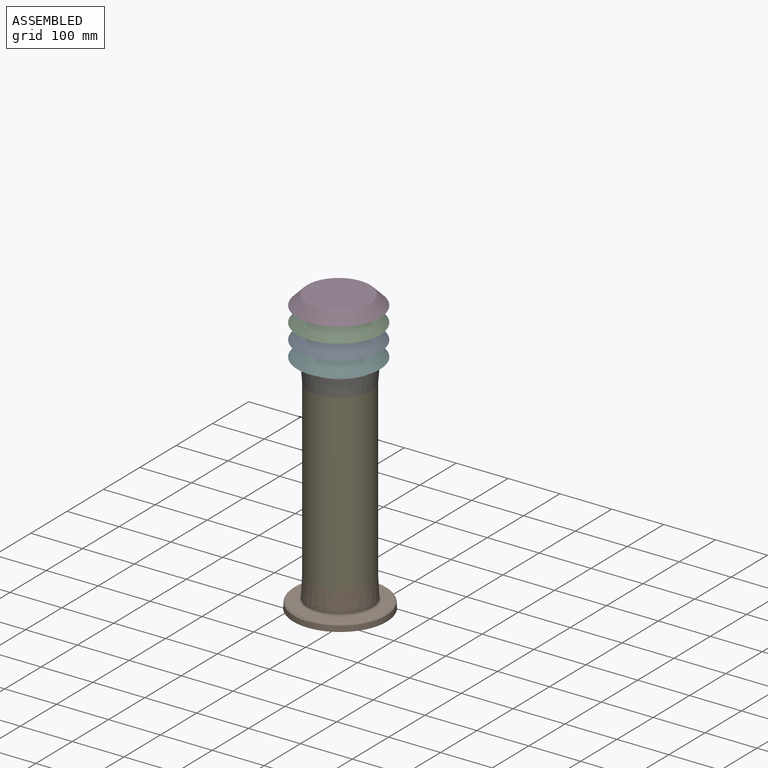
[diagram: assembled view]
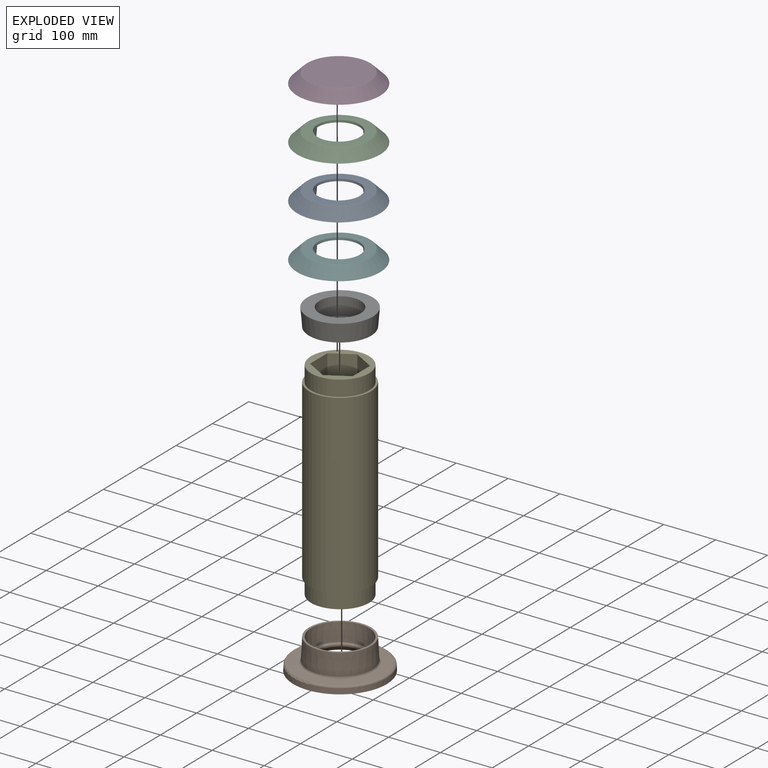
[diagram: exploded view]
GUIDED TOUR — MATED ASSEMBLY (Onshape document 784e36c44c96b5ca6e36557c, AutoMate assembly 784e36c44c96b5ca6e36557c_433cd6b05420b332130fd527_df80a0578f8339618f9793ca_default)

This assembly has 7 components, labeled P0..P6 below (a component is one placed occurrence of a part; the same part can appear more than once), held together by 5 mates. A mate is a constraint between two components; its type names the relative motion it leaves free:
  FASTENED — locks the two components together rigidly (no relative motion).
Axis/direction vectors are unit vectors and 'through' points are millimeter coordinates, both in the assembly's world frame.

MATES
  1. FASTENED "Fastened 4": P0 <-> P2, direction (0.000, 0.000, -1.000) through (29.02, 185.79, 226.51) mm
  2. FASTENED "Fastened 2": P5 <-> P0, direction (0.000, 0.000, -1.000) through (29.02, 185.79, 196.51) mm
  3. FASTENED "Fastened 7": P4 <-> P1, direction (0.000, 0.000, -1.000) through (5.22, 144.57, -207.49) mm
  4. FASTENED "Fastened 5": P5 <-> P6, direction (0.000, 0.000, -1.000) through (29.02, 185.79, 196.51) mm
  5. FASTENED "Fastened 3": P3 <-> P2, direction (0.000, 0.000, 1.000) through (4.02, 142.49, 316.51) mm

ASSEMBLY ORDER
  1. P4 — the base component [order heuristic]
  2. P6 — core [order heuristic]
  3. P1 — core [order heuristic]
  4. P5 [order verified]
  5. P0 [order verified]
  6. P2 [order verified]
  7. P3 [order verified]
Order-tag legend:
  [order verified] — this step's position reverses a verified removal order: the component was checked to insert without passing through the ones already placed.
  [order heuristic] — the first 3 components form the assembly's core: parts whose collision-free extraction could not be verified, listed in mate-graph order.

Of the 7 components, 6 carry the full construction recipe — the FeatureScript program that regenerates the part's solid from scratch; the rest are supplied as boundary geometry only.
Each toured component is shown spotlighted twice — in the assembled view, then in the exploded view, where a leader line traces a displaced component back to its assembled socket (saturated green if recipe-attached, orange if geometry-only; every other component desaturated gray) — followed by its recipe or geometry summary and the mates that hold it.
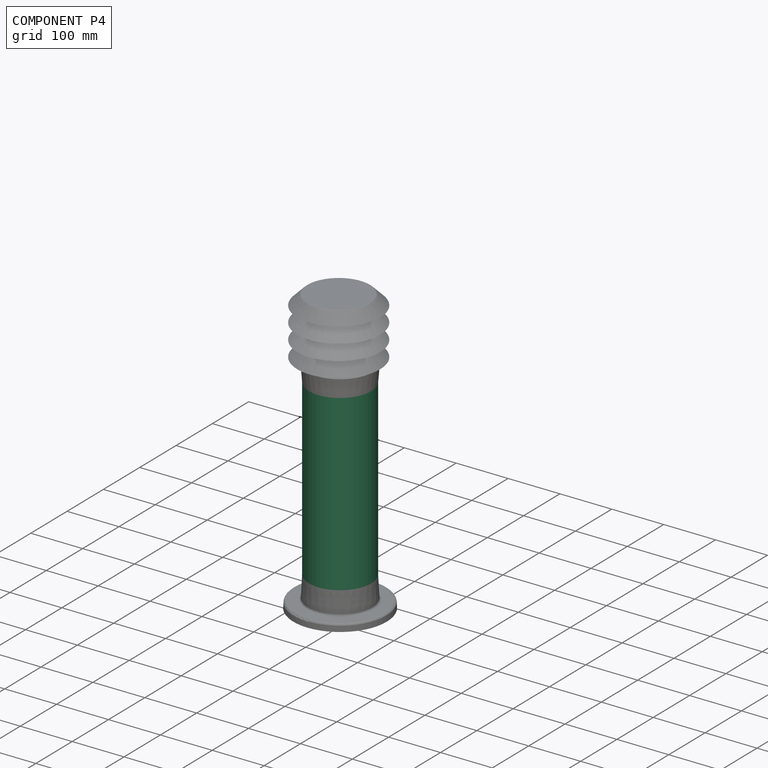
[diagram: component P4 — assembled]
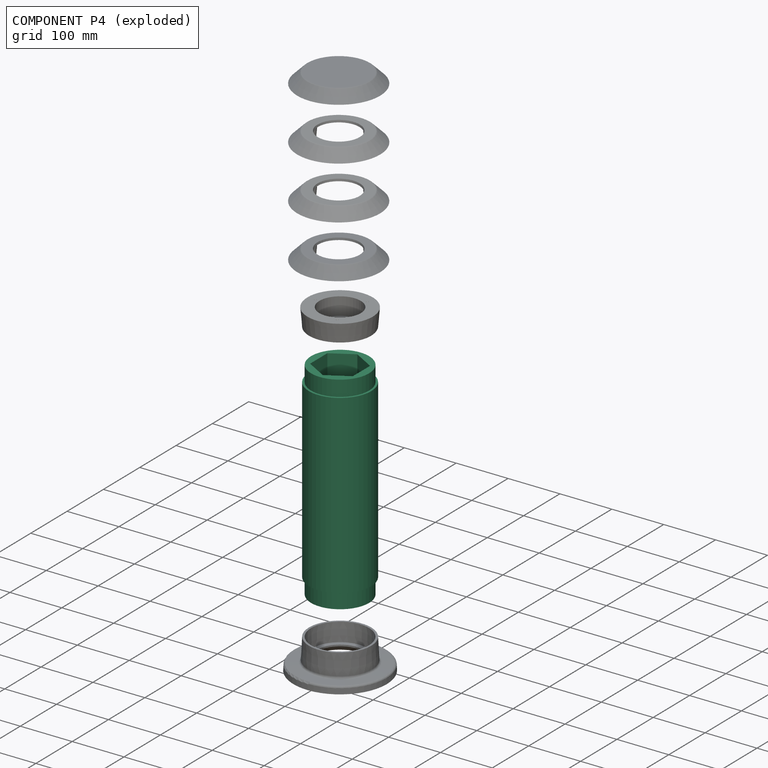
[diagram: component P4 — exploded]
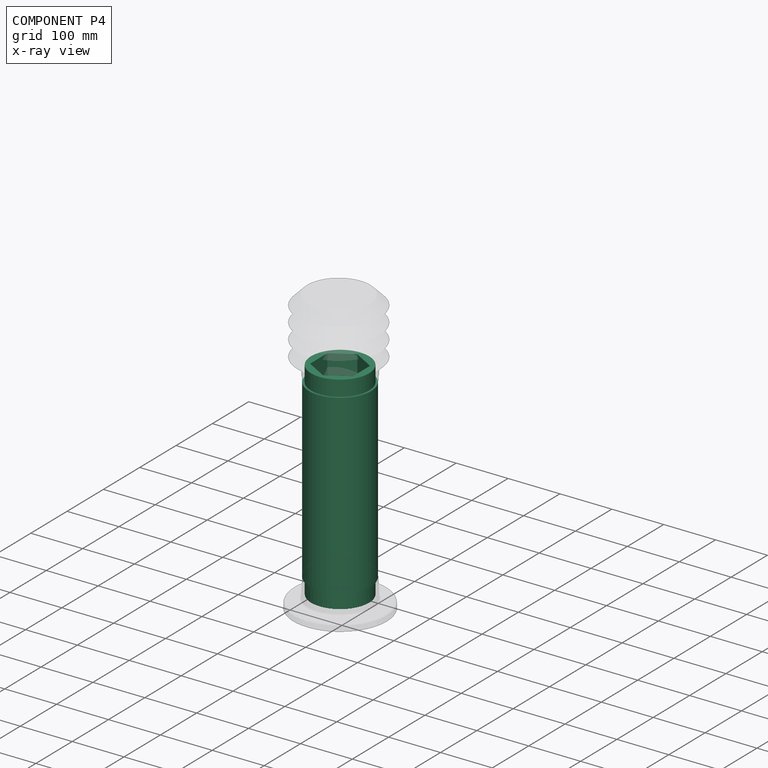
[diagram: component P4 — x-ray view]
COMPONENT P4 — recipe-attached (CADFS 00659812, mesh-verified: the recipe's output STEP matches this component's geometry to below the mesh-comparison resolution (tessellation chordal tolerance ~0.652 mm)).
Held by: FASTENED mate "Fastened 7" to P1.
Construction recipe (FeatureScript — the CAD program that rebuilds this solid; sketch coordinates are in the units given by the * unit suffixes, e.g. mm):

FeatureScript 1511;
import(path : "onshape/std/geometry.fs", version : "1511.0");
import(path : "onshape/std/common.fs", version : "1511.0");
const mm = millimeter;
const VERTEX = EntityType.VERTEX;
const EDGE = EntityType.EDGE;
const FACE = EntityType.FACE;
const BODY = EntityType.BODY;
function v(x, y){return vector(x, y);}
function OD(order){return orderDisambiguation(order);}
function OSD(set){return originalSetDisambiguation(set);}
function TD(topology){return topologyDisambiguation(topology);}
function TDD(query){return trueDependencyDisambiguation(query);}
function sQuery(a, b, c) {return sketchEntityQuery(a, b, c);}

annotation { "Feature Type Name" : "Feature", "Feature Type Description" : "" }
export const myFeature = defineFeature(function(context is Context, id is Id, definition is map)
    precondition{}
    {
        {
            var Q0;
            Q0=qCreatedBy(makeId("Top.planeOp"),FACE);
            var sketch = newSketch(context, id + "F0", { "sketchPlane" : qUnion([Q0])});
            skCircle(sketch, "E0", {"center": v(0, 0) * mm, "radius": 62.5 * mm, "construction": true});
            skCircle(sketch, "E1", {"center": v(0, 0) * mm, "radius": 47.5 * mm, "construction": true});
            skLineSegment(sketch, "E2.0", {"start": v(62.5, 36.08) * mm, "end": v(62.5, -36.08) * mm});
            skLineSegment(sketch, "E2.1", {"start": v(62.5, -36.08) * mm, "end": v(0, -72.17) * mm});
            skLineSegment(sketch, "E2.2", {"start": v(0, -72.17) * mm, "end": v(-62.5, -36.08) * mm});
            skLineSegment(sketch, "E2.3", {"start": v(-62.5, -36.08) * mm, "end": v(-62.5, 36.08) * mm});
            skLineSegment(sketch, "E2.4", {"start": v(-62.5, 36.08) * mm, "end": v(0, 72.17) * mm});
            skLineSegment(sketch, "E2.5", {"start": v(0, 72.17) * mm, "end": v(62.5, 36.08) * mm});
            skPoint(sketch, "E2.0.midPoint", {"position": v(62.5, 0) * mm});
            skLineSegment(sketch, "E3", {"start": v(0, 0) * mm, "end": v(62.5, -36.08) * mm, "construction": true});
            skLineSegment(sketch, "E4", {"start": v(0, 0) * mm, "end": v(62.5, 36.08) * mm, "construction": true});
            skLineSegment(sketch, "E5", {"start": v(41.14, -23.75) * mm, "end": v(41.14, 23.75) * mm});
            skLineSegment(sketch, "E6", {"start": v(41.14, 23.75) * mm, "end": v(0, 47.5) * mm});
            skLineSegment(sketch, "E7", {"start": v(0, 0) * mm, "end": v(-62.5, 36.08) * mm, "construction": true});
            skLineSegment(sketch, "E8", {"start": v(0, 0) * mm, "end": v(-62.5, -36.08) * mm, "construction": true});
            skLineSegment(sketch, "E9", {"start": v(0, 0) * mm, "end": v(0, -72.17) * mm, "construction": true});
            skLineSegment(sketch, "E10", {"start": v(0, 0) * mm, "end": v(0, 72.17) * mm, "construction": true});
            skLineSegment(sketch, "E11", {"start": v(0, 47.5) * mm, "end": v(-41.14, 23.75) * mm});
            skLineSegment(sketch, "E12", {"start": v(-41.14, 23.75) * mm, "end": v(-41.14, -23.75) * mm});
            skLineSegment(sketch, "E13", {"start": v(-41.14, -23.75) * mm, "end": v(0, -47.5) * mm});
            skLineSegment(sketch, "E14", {"start": v(0, -47.5) * mm, "end": v(41.14, -23.75) * mm});
            skSolve(sketch);
        }
        {
            var Q0;
            Q0 = qSketchRegion(id + "F0", true);
            extrude(context, id + "F1", {"entities" : qUnion([Q0]), "depth" : 400 * mm, "offsetDistance" : 25 * mm});
        }
        {
            var Q0;
            Q0=qCreatedBy(makeId("Top.planeOp"),FACE);
            var sketch = newSketch(context, id + "F2", { "sketchPlane" : qUnion([Q0])});
            skCircle(sketch, "E15", {"center": v(0, 0) * mm, "radius": 60 * mm});
            skCircle(sketch, "E16", {"center": v(0, 0) * mm, "radius": 91.56 * mm});
            skSolve(sketch);
        }
        {
            var Q0;
            Q0 = qSketchRegion(id + "F2", true);
            extrude(context, id + "F3", {"entities" : qUnion([Q0]), "operationType" : NewBodyOperationType.REMOVE, "endBound" : BoundingType.THROUGH_ALL, "depth" : 25 * mm, "offsetDistance" : 25 * mm});
        }
        {
            var Q0;
            Q0=qCreatedBy(makeId("Top.planeOp"),FACE);
            var sketch = newSketch(context, id + "F4", { "sketchPlane" : qUnion([Q0])});
            skCircle(sketch, "E17", {"center": v(0, 0) * mm, "radius": 159.33 * mm});
            skCircle(sketch, "E18", {"center": v(0, 0) * mm, "radius": 56 * mm});
            skSolve(sketch);
        }
        {
            var Q0;
            Q0 = qSketchRegion(id + "F4", true);
            extrude(context, id + "F5", {"entities" : qUnion([Q0]), "operationType" : NewBodyOperationType.REMOVE, "depth" : 30 * mm, "offsetDistance" : 25 * mm});
        }
        {
            var Q0;
            Q0=makeQuery(id+"F1.opExtrude","CAP_FACE",FACE,{"disambiguationData":[OSD([sQuery(id+"F0.wireOp",EDGE,"E2.0"),sQuery(id+"F0.wireOp",EDGE,"E2.1"),sQuery(id+"F0.wireOp",EDGE,"E2.2"),sQuery(id+"F0.wireOp",EDGE,"E2.3"),sQuery(id+"F0.wireOp",EDGE,"E2.4"),sQuery(id+"F0.wireOp",EDGE,"E2.5"),sQuery(id+"F0.wireOp",EDGE,"E5"),sQuery(id+"F0.wireOp",EDGE,"E6"),sQuery(id+"F0.wireOp",EDGE,"E11"),sQuery(id+"F0.wireOp",EDGE,"E12"),sQuery(id+"F0.wireOp",EDGE,"E13"),sQuery(id+"F0.wireOp",EDGE,"E14")])],"isStart":false});
            var sketch = newSketch(context, id + "F6", { "sketchPlane" : qUnion([Q0])});
            skCircle(sketch, "E19.0", {"center": v(0, 0) * mm, "radius": 60 * mm, "construction": true});
            skCircle(sketch, "E20", {"center": v(0, 0) * mm, "radius": 56 * mm});
            skCircle(sketch, "E21", {"center": v(0, 0) * mm, "radius": 72.94 * mm});
            skSolve(sketch);
        }
        {
            var Q0;
            Q0 = qSketchRegion(id + "F6", true);
            extrude(context, id + "F7", {"entities" : qUnion([Q0]), "operationType" : NewBodyOperationType.REMOVE, "oppositeDirection" : true, "depth" : 30 * mm, "offsetDistance" : 25 * mm});
        }
    });
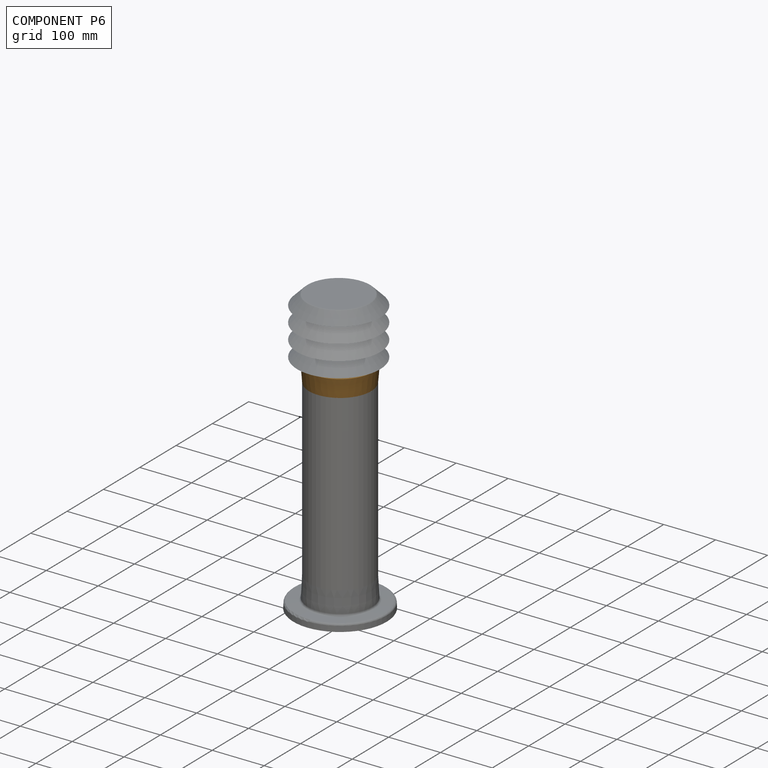
[diagram: component P6 — assembled]
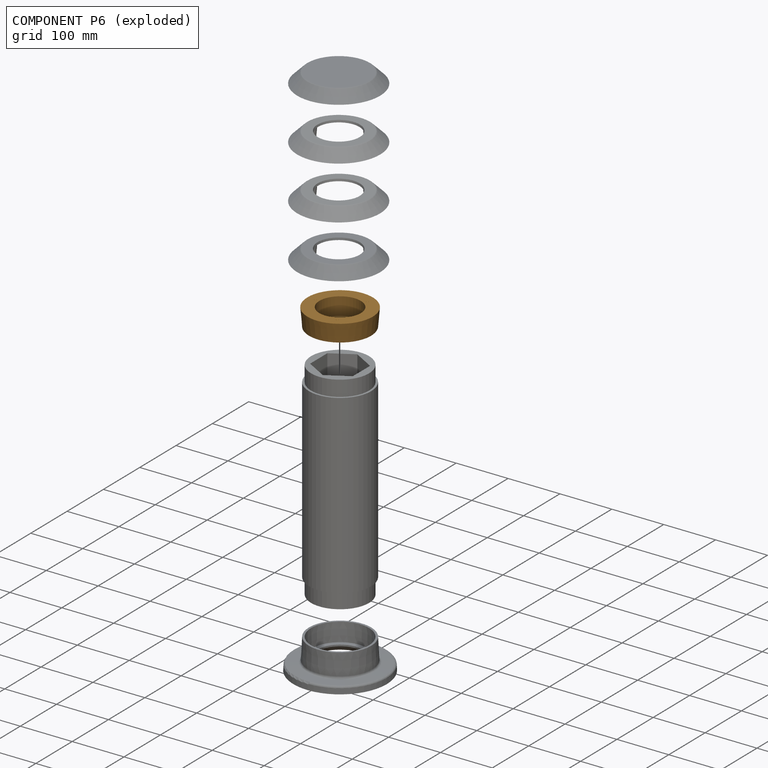
[diagram: component P6 — exploded]
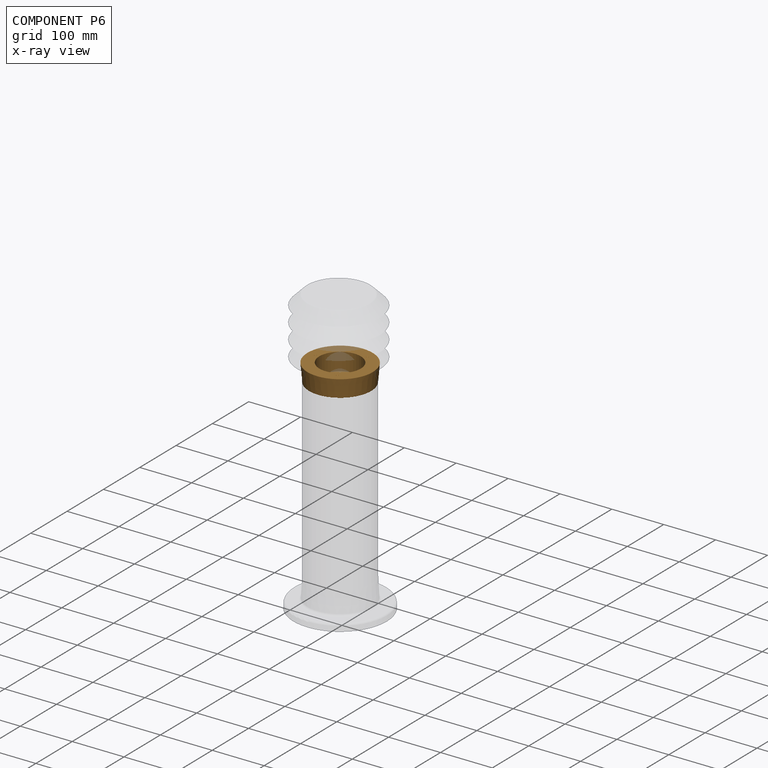
[diagram: component P6 — x-ray view]
COMPONENT P6 — geometry summary (no construction recipe available for this part):
  bounding box: 125.9 x 125.9 x 38.0 mm
  B-rep topology: 1 solid, 14 faces, 59 edges
  volume: 152552 mm^3 (25% of its bounding box)
  symmetry: 3-fold rotationally symmetric about the z axis; mirror-symmetric across its y mid-plane
Held by: FASTENED mate "Fastened 5" to P5.
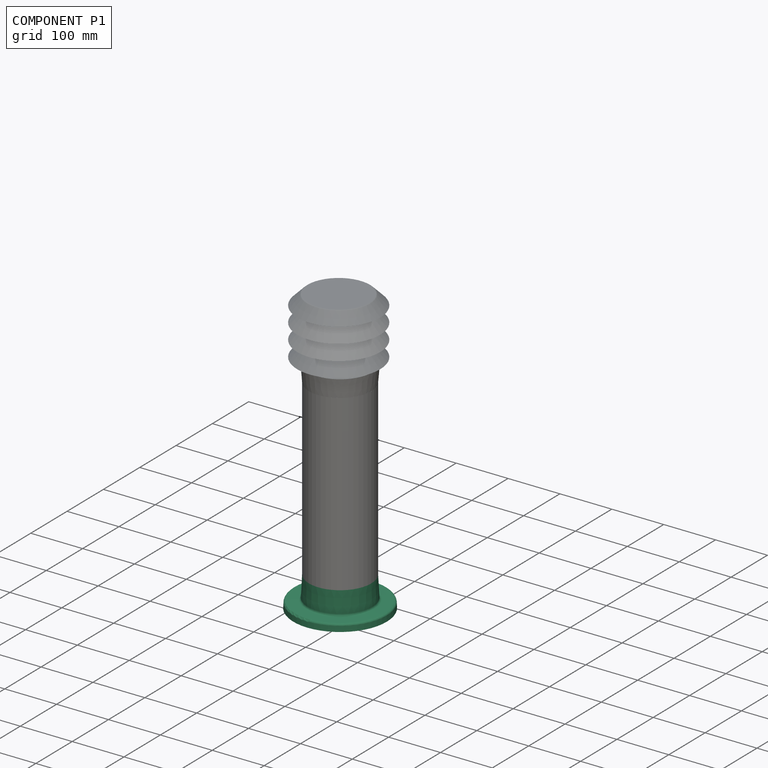
[diagram: component P1 — assembled]
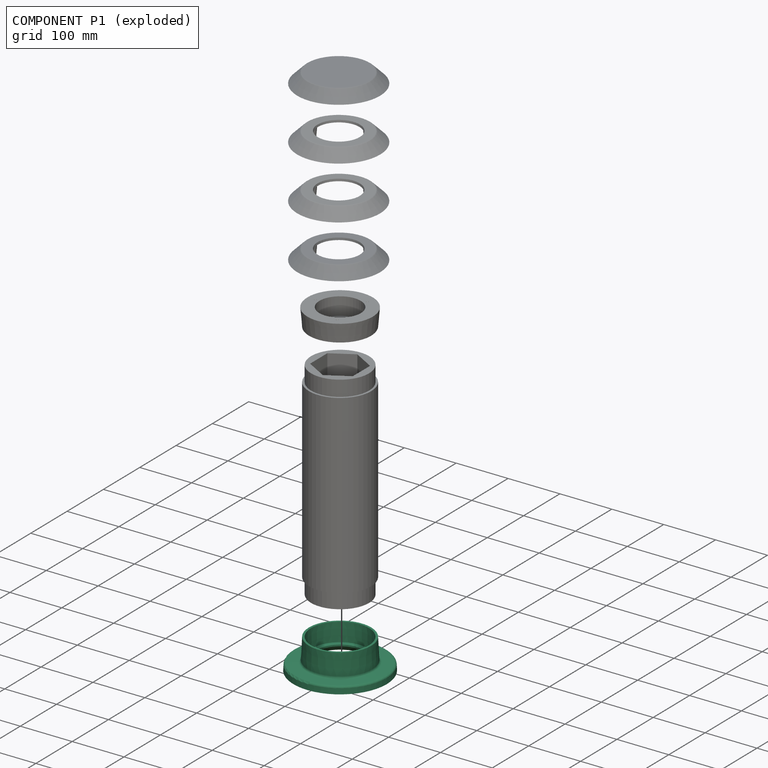
[diagram: component P1 — exploded]
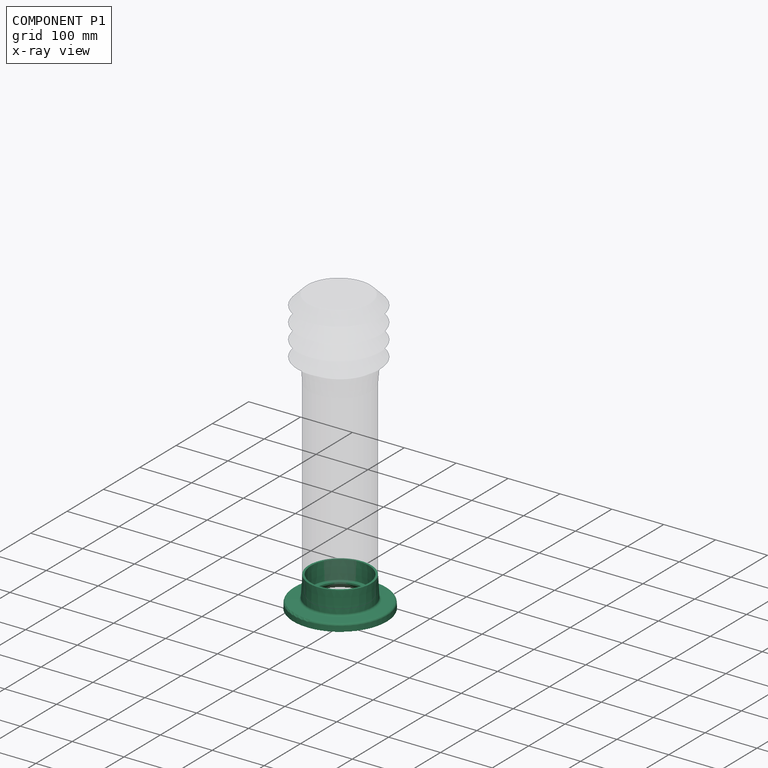
[diagram: component P1 — x-ray view]
COMPONENT P1 — recipe-attached (CADFS 00659814, mesh-verified: the recipe's output STEP matches this component's geometry to below the mesh-comparison resolution (tessellation chordal tolerance ~0.392 mm)).
Held by: FASTENED mate "Fastened 7" to P4.
Construction recipe (FeatureScript — the CAD program that rebuilds this solid; sketch coordinates are in the units given by the * unit suffixes, e.g. mm):

FeatureScript 1511;
import(path : "onshape/std/geometry.fs", version : "1511.0");
import(path : "onshape/std/common.fs", version : "1511.0");
const mm = millimeter;
const VERTEX = EntityType.VERTEX;
const EDGE = EntityType.EDGE;
const FACE = EntityType.FACE;
const BODY = EntityType.BODY;
function v(x, y){return vector(x, y);}
function OD(order){return orderDisambiguation(order);}
function OSD(set){return originalSetDisambiguation(set);}
function TD(topology){return topologyDisambiguation(topology);}
function TDD(query){return trueDependencyDisambiguation(query);}
function sQuery(a, b, c) {return sketchEntityQuery(a, b, c);}

annotation { "Feature Type Name" : "Feature", "Feature Type Description" : "" }
export const myFeature = defineFeature(function(context is Context, id is Id, definition is map)
    precondition{}
    {
        {
            var Q0;
            Q0=qCreatedBy(makeId("Front.planeOp"),FACE);
            var sketch = newSketch(context, id + "F0", { "sketchPlane" : qUnion([Q0])});
            skLineSegment(sketch, "E0", {"start": v(45, 0) * mm, "end": v(54.17, 0) * mm});
            skLineSegment(sketch, "E1", {"start": v(56, 35) * mm, "end": v(60, 35) * mm});
            skLineSegment(sketch, "E2", {"start": v(60, 35) * mm, "end": v(62.1, -5.23) * mm});
            skLineSegment(sketch, "E3", {"start": v(65.9, -9.02) * mm, "end": v(85.7, -10.06) * mm});
            skLineSegment(sketch, "E4", {"start": v(0, -4) * mm, "end": v(0, 0) * mm, "construction": true});
            skLineSegment(sketch, "E5", {"start": v(90, -23.75) * mm, "end": v(86, -23.75) * mm});
            skPoint(sketch, "E6.visualSharp", {"position": v(56, -21.06) * mm});
            skArc(sketch, "E7.filletArc", {"start": v(62.1, -5.23) * mm, "mid": v(63.27, -7.85) * mm, "end": v(65.9, -9.02) * mm});
            skPoint(sketch, "E8.visualSharp", {"position": v(95.88, -10.6) * mm});
            skLineSegment(sketch, "E9", {"start": v(45, 0) * mm, "end": v(45, -3) * mm});
            skLineSegment(sketch, "E10", {"start": v(83.57, -13.66) * mm, "end": v(55.66, -13.66) * mm});
            skPoint(sketch, "E11.visualSharp", {"position": v(96, -13.66) * mm});
            skLineSegment(sketch, "E11.filletArc", {"start": v(96, -13.66) * mm, "end": v(96, -13.66) * mm});
            skLineSegment(sketch, "E12", {"start": v(55.66, -13.66) * mm, "end": v(45, -3) * mm});
            skLineSegment(sketch, "E13", {"start": v(56, 35) * mm, "end": v(54.17, 0) * mm});
            skPoint(sketch, "E14.orphan", {"position": v(56, 0) * mm});
            skLineSegment(sketch, "E15", {"start": v(86, -23.75) * mm, "end": v(85.57, -15.55) * mm});
            skArc(sketch, "E16.filletArc", {"start": v(85.57, -15.55) * mm, "mid": v(84.95, -14.2) * mm, "end": v(83.57, -13.66) * mm});
            skLineSegment(sketch, "E17", {"start": v(90, -23.75) * mm, "end": v(89.48, -13.84) * mm});
            skArc(sketch, "E18.filletArc", {"start": v(89.48, -13.84) * mm, "mid": v(88.31, -11.22) * mm, "end": v(85.7, -10.06) * mm});
            skSolve(sketch);
        }
        {
            var Q0;
            Q0 = qSketchRegion(id + "F0", true);
            var Q1;
            Q1=sQuery(id+"F0.wireOp",EDGE,"E4");
            revolve(context, id + "F1", {"entities" : qUnion([Q0]), "axis" : qUnion([Q1]), "revolveType" : RevolveType.FULL});
        }
    });
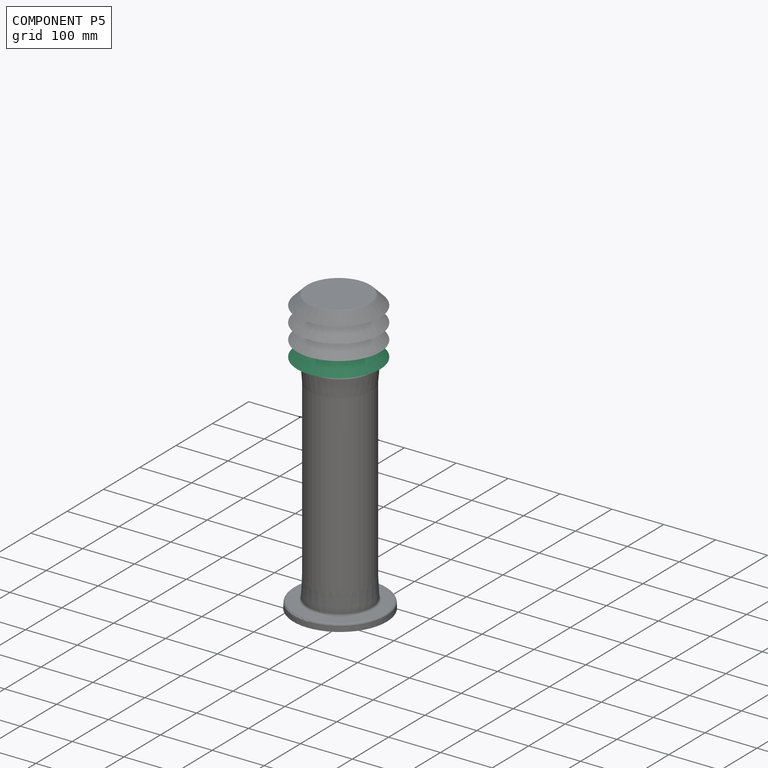
[diagram: component P5 — assembled]
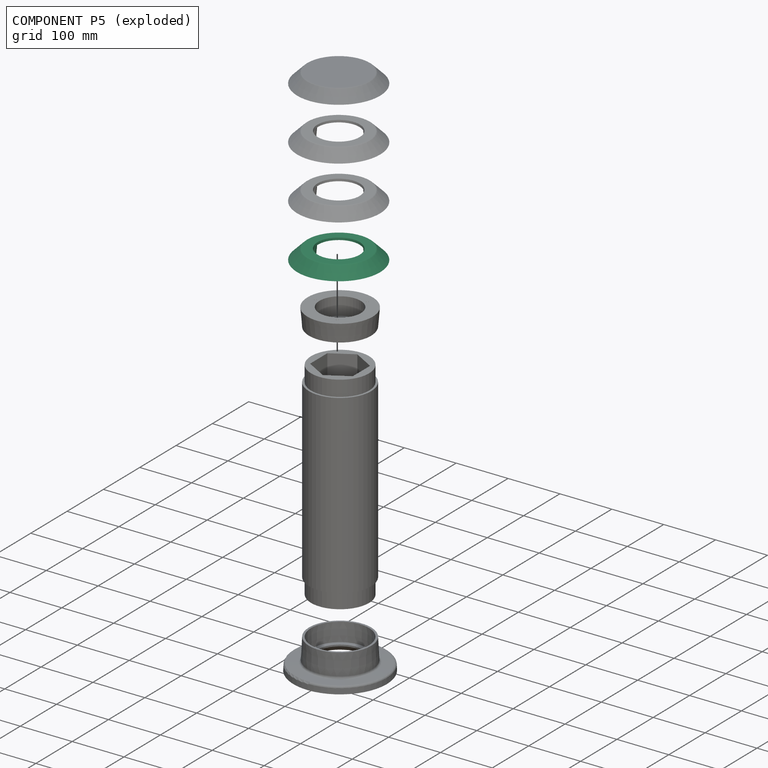
[diagram: component P5 — exploded]
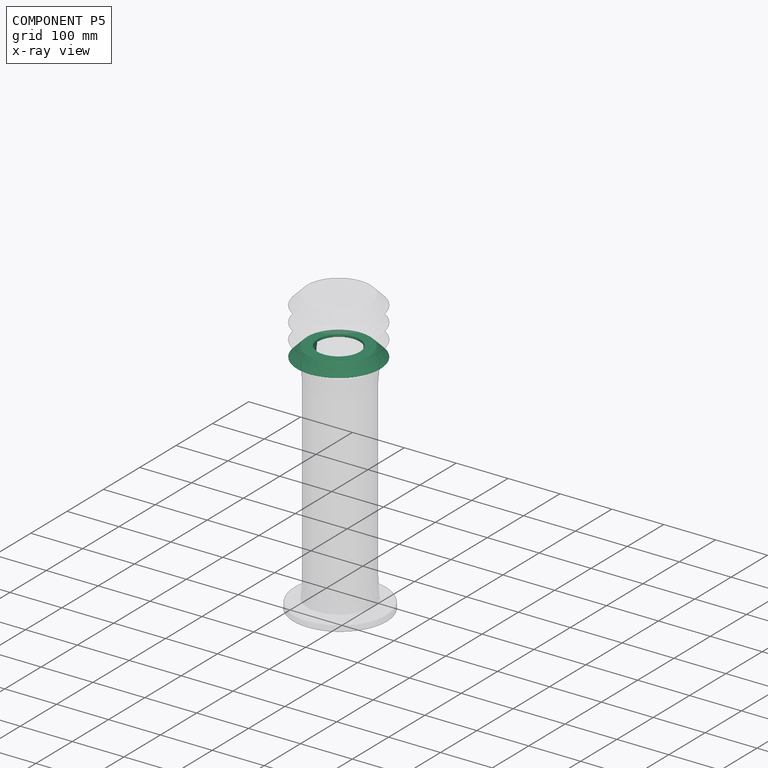
[diagram: component P5 — x-ray view]
COMPONENT P5 — same part as P0 (CADFS 00659811); its construction recipe is shown at P0.
Held by: FASTENED mate "Fastened 2" to P0; FASTENED mate "Fastened 5" to P6.
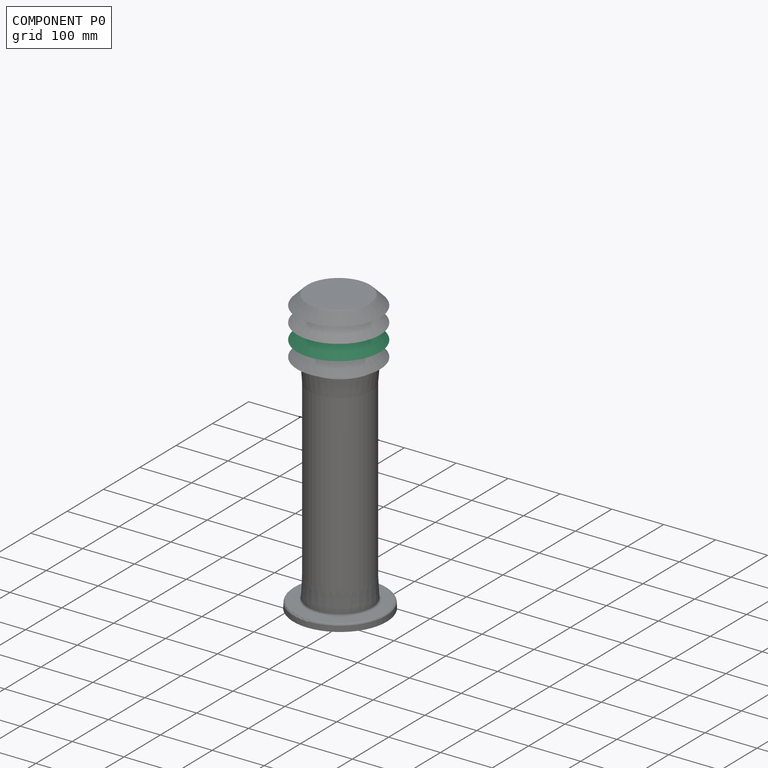
[diagram: component P0 — assembled]
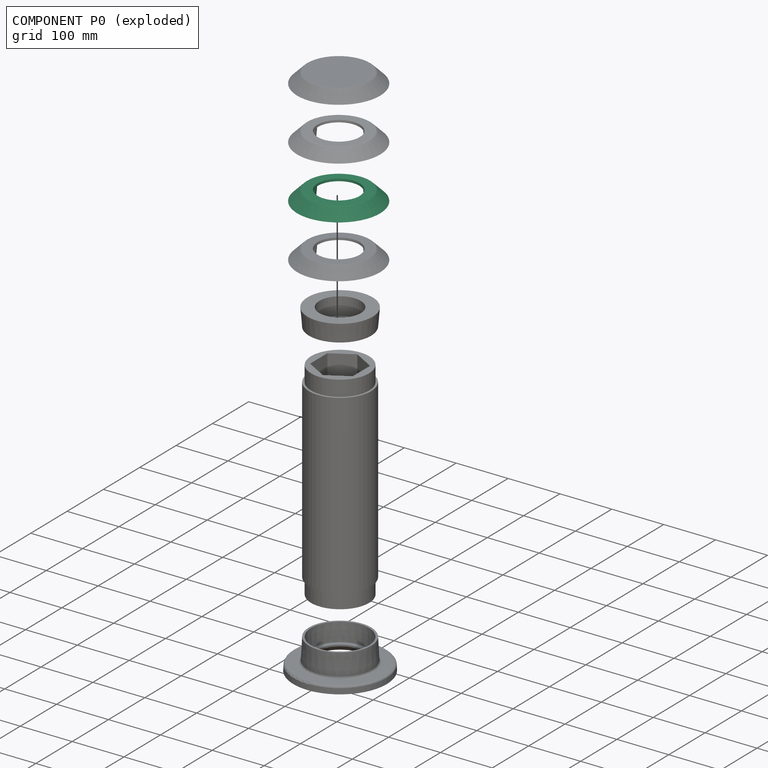
[diagram: component P0 — exploded]
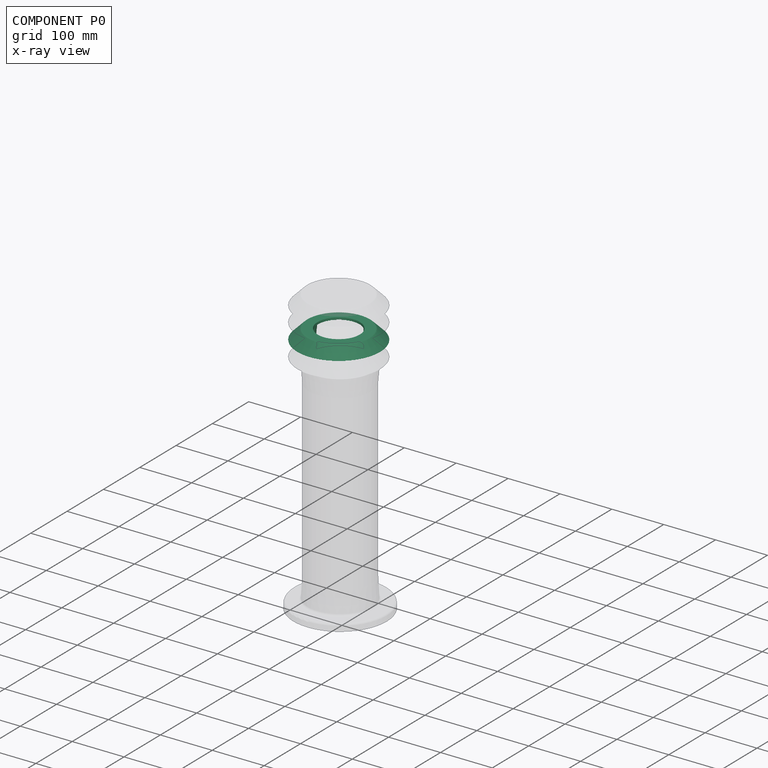
[diagram: component P0 — x-ray view]
COMPONENT P0 — recipe-attached (CADFS 00659811, mesh-verified: the recipe's output STEP matches this component's geometry to below the mesh-comparison resolution (tessellation chordal tolerance ~0.342 mm)).
Held by: FASTENED mate "Fastened 4" to P2; FASTENED mate "Fastened 2" to P5.
Construction recipe (FeatureScript — the CAD program that rebuilds this solid; sketch coordinates are in the units given by the * unit suffixes, e.g. mm):

FeatureScript 1511;
import(path : "onshape/std/geometry.fs", version : "1511.0");
import(path : "onshape/std/common.fs", version : "1511.0");
const mm = millimeter;
const VERTEX = EntityType.VERTEX;
const EDGE = EntityType.EDGE;
const FACE = EntityType.FACE;
const BODY = EntityType.BODY;
function v(x, y){return vector(x, y);}
function OD(order){return orderDisambiguation(order);}
function OSD(set){return originalSetDisambiguation(set);}
function TD(topology){return topologyDisambiguation(topology);}
function TDD(query){return trueDependencyDisambiguation(query);}
function sQuery(a, b, c) {return sketchEntityQuery(a, b, c);}

annotation { "Feature Type Name" : "Feature", "Feature Type Description" : "" }
export const myFeature = defineFeature(function(context is Context, id is Id, definition is map)
    precondition{}
    {
        {
            var Q0;
            Q0=qCreatedBy(makeId("Front.planeOp"),FACE);
            var sketch = newSketch(context, id + "F0", { "sketchPlane" : qUnion([Q0])});
            skLineSegment(sketch, "E0", {"start": v(0, 0) * mm, "end": v(60, 0) * mm});
            skLineSegment(sketch, "E1", {"start": v(60, 0) * mm, "end": v(80, 20) * mm});
            skLineSegment(sketch, "E2", {"start": v(80, 20) * mm, "end": v(74.34, 20) * mm});
            skLineSegment(sketch, "E3", {"start": v(74.34, 20) * mm, "end": v(58.34, 4) * mm});
            skLineSegment(sketch, "E4", {"start": v(58.34, 4) * mm, "end": v(0, 4) * mm});
            skLineSegment(sketch, "E5", {"start": v(0, 4) * mm, "end": v(0, 0) * mm});
            skSolve(sketch);
        }
        {
            var Q0;
            Q0=qSketchRegion(id+"F0",true);
            var Q1;
            Q1=sQuery(id+"F0.wireOp",EDGE,"E5");
            revolve(context, id + "F1", {"entities" : qUnion([Q0]), "axis" : qUnion([Q1]), "revolveType" : RevolveType.FULL});
        }
        {
            var Q0;
            Q0=qCreatedBy(makeId("Top.planeOp"),FACE);
            var sketch = newSketch(context, id + "F2", { "sketchPlane" : qUnion([Q0])});
            skCircle(sketch, "E6", {"center": v(25, 43.3) * mm, "radius": 7.5 * mm});
            skCircle(sketch, "E7", {"center": v(-50, 0) * mm, "radius": 7.5 * mm});
            skLineSegment(sketch, "E8", {"start": v(0, 0) * mm, "end": v(31.77, 55.03) * mm, "construction": true});
            skLineSegment(sketch, "E9", {"start": v(0, 0) * mm, "end": v(26.35, -45.65) * mm, "construction": true});
            skCircle(sketch, "E10", {"center": v(25, -43.3) * mm, "radius": 7.5 * mm});
            skSolve(sketch);
        }
        {
            var Q0;
            Q0=qSketchRegion(id+"F2",true);
            var Q1;
            Q1=makeQuery(id+"F1.opRevolve","SWEPT_FACE",FACE,{"disambiguationData":[OSD([sQuery(id+"F0.wireOp",EDGE,"E2")])]});
            extrude(context, id + "F3", {"entities" : qUnion([Q0]), "operationType" : NewBodyOperationType.ADD, "depth" : 30 * mm, "endBoundEntityFace" : qUnion([Q1]), "offsetDistance" : 10 * mm, "hasDraft" : true, "draftAngle" : 5 * degree, "draftPullDirection" : true});
        }
        {
            var Q0;
            Q0=makeQuery(id+"F1.opRevolve","SWEPT_FACE",FACE,{"disambiguationData":[OSD([sQuery(id+"F0.wireOp",EDGE,"E4")])]});
            fillet(context, id + "F4", {"entities" : qUnion([Q0]), "radius" : 3 * mm, "tangentPropagation" : true, "allowEdgeOverflow" : false});
        }
        {
            var Q0;
            Q0=makeQuery(id+"F1.opRevolve","SWEPT_FACE",FACE,{"disambiguationData":[OSD([sQuery(id+"F0.wireOp",EDGE,"E0")])]});
            fillet(context, id + "F5", {"entities" : qUnion([Q0]), "radius" : 3 * mm, "tangentPropagation" : true, "allowEdgeOverflow" : false});
        }
        {
            var Q0;
            Q0=makeQuery(id+"F3.opExtrude","CAP_FACE",FACE,{"disambiguationData":[OSD([sQuery(id+"F2.wireOp",EDGE,"E7")])],"isStart":false});
            var sketch = newSketch(context, id + "F6", { "sketchPlane" : qUnion([Q0])});
            skCircle(sketch, "E11.0.0", {"center": v(-50, 0) * mm, "radius": 4.88 * mm, "construction": true});
            skCircle(sketch, "E12.0", {"center": v(25, 43.3) * mm, "radius": 4.88 * mm, "construction": true});
            skCircle(sketch, "E13.0", {"center": v(25, -43.3) * mm, "radius": 4.88 * mm, "construction": true});
            skCircle(sketch, "E14", {"center": v(25, 43.3) * mm, "radius": 2.5 * mm});
            skCircle(sketch, "E15", {"center": v(25, -43.3) * mm, "radius": 2.5 * mm});
            skCircle(sketch, "E16", {"center": v(-50, 0) * mm, "radius": 2.5 * mm});
            skSolve(sketch);
        }
        {
            var Q0;
            Q0=qSketchRegion(id+"F6",true);
            extrude(context, id + "F7", {"entities" : qUnion([Q0]), "operationType" : NewBodyOperationType.REMOVE, "oppositeDirection" : true, "depth" : 2.5 * mm, "offsetDistance" : 25 * mm, "hasDraft" : true, "draftAngle" : 45 * degree, "draftPullDirection" : true});
        }
        {
            var Q0;
            Q0=makeQuery(id+"F1.opRevolve","SWEPT_FACE",FACE,{"disambiguationData":[OSD([sQuery(id+"F0.wireOp",EDGE,"E4")])]});
            var sketch = newSketch(context, id + "F8", { "sketchPlane" : qUnion([Q0])});
            skCircle(sketch, "E17", {"center": v(0, 0) * mm, "radius": 40 * mm});
            skSolve(sketch);
        }
        {
            var Q0;
            Q0 = qSketchRegion(id + "F8", true);
            extrude(context, id + "F9", {"entities" : qUnion([Q0]), "operationType" : NewBodyOperationType.REMOVE, "endBound" : BoundingType.THROUGH_ALL, "oppositeDirection" : true, "depth" : 25 * mm, "offsetDistance" : 25 * mm, "hasDraft" : true, "draftAngle" : 10 * degree});
        }
    });
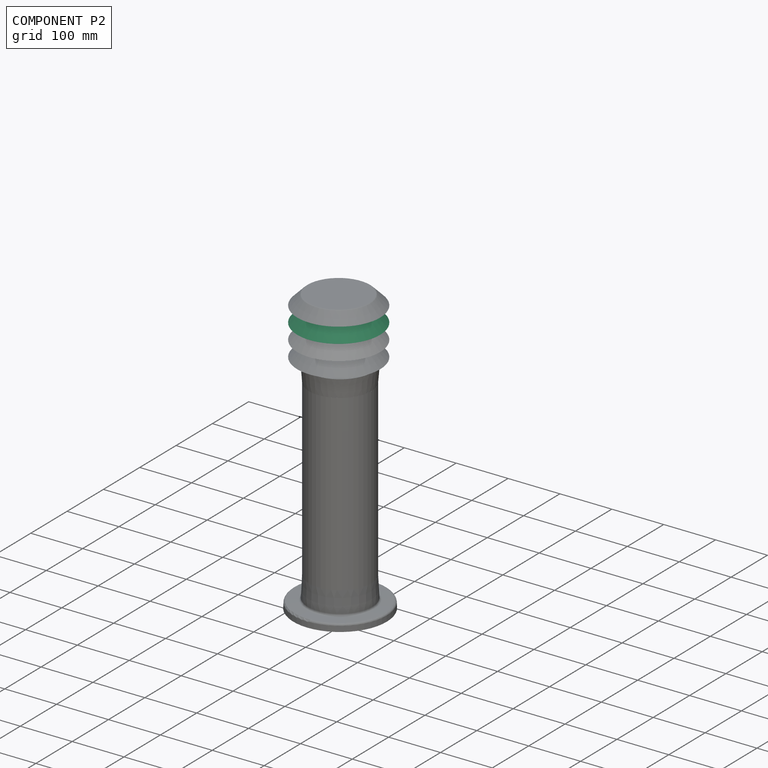
[diagram: component P2 — assembled]
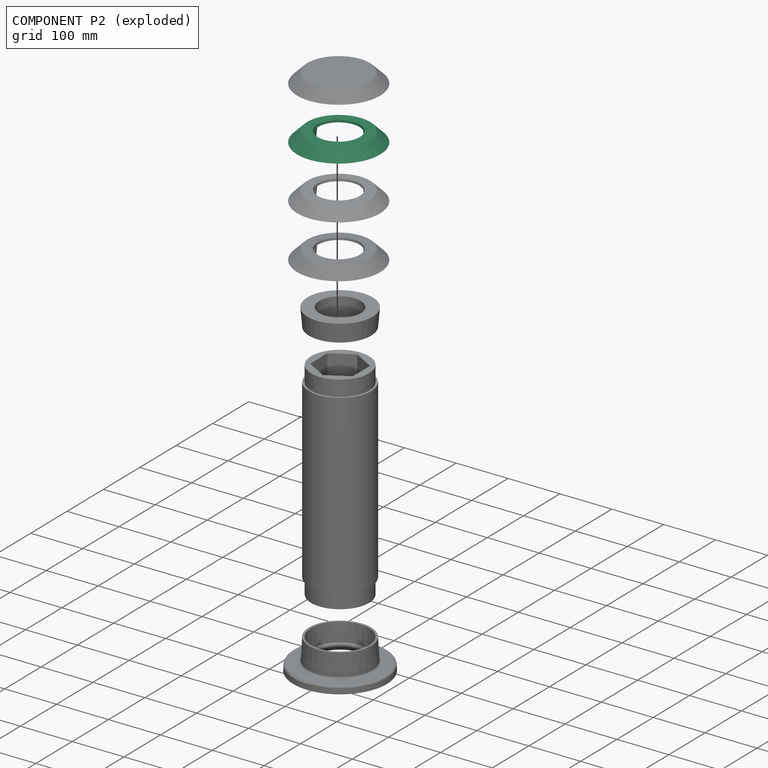
[diagram: component P2 — exploded]
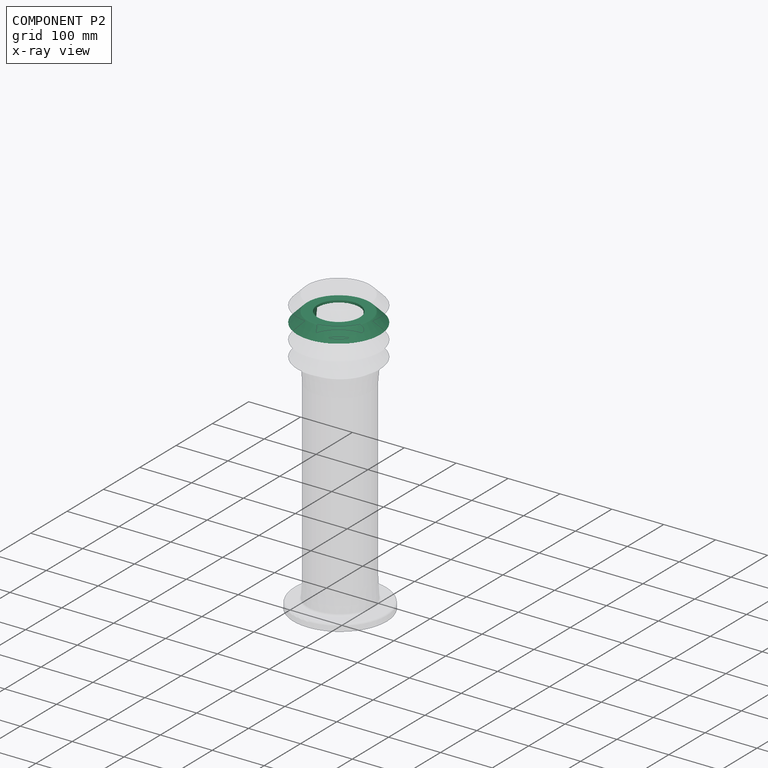
[diagram: component P2 — x-ray view]
COMPONENT P2 — same part as P0 (CADFS 00659811); its construction recipe is shown at P0.
Held by: FASTENED mate "Fastened 4" to P0; FASTENED mate "Fastened 3" to P3.
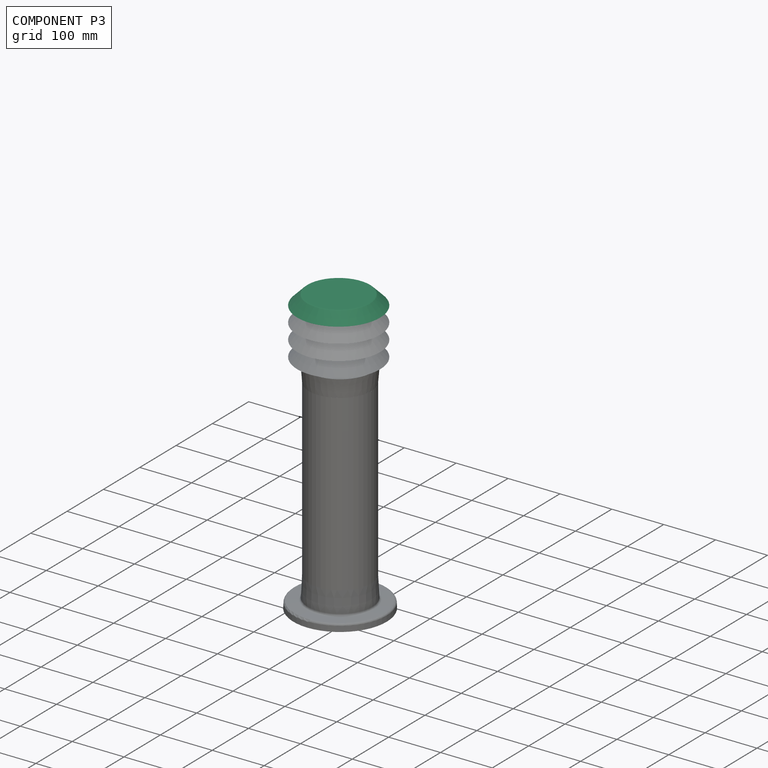
[diagram: component P3 — assembled]
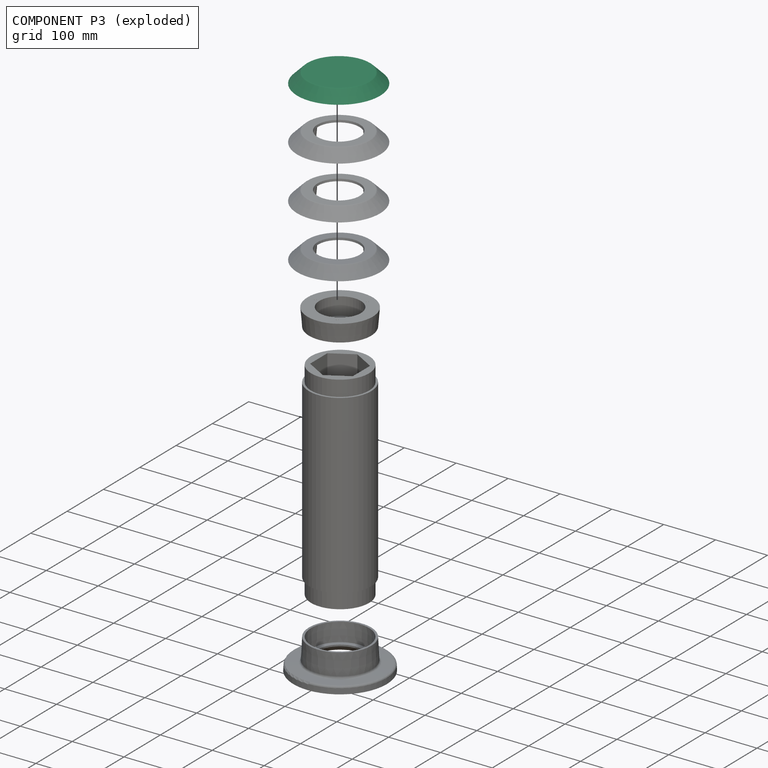
[diagram: component P3 — exploded]
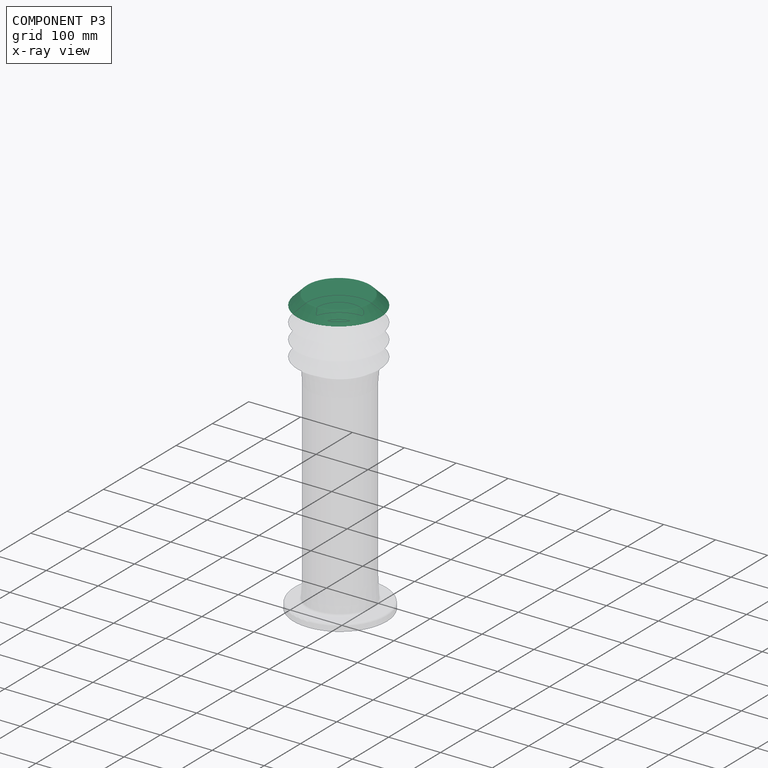
[diagram: component P3 — x-ray view]
COMPONENT P3 — recipe-attached (CADFS 00659810, mesh-verified: the recipe's output STEP matches this component's geometry to below the mesh-comparison resolution (tessellation chordal tolerance ~0.342 mm)).
Held by: FASTENED mate "Fastened 3" to P2.
Construction recipe (FeatureScript — the CAD program that rebuilds this solid; sketch coordinates are in the units given by the * unit suffixes, e.g. mm):

FeatureScript 1511;
import(path : "onshape/std/geometry.fs", version : "1511.0");
import(path : "onshape/std/common.fs", version : "1511.0");
const mm = millimeter;
const VERTEX = EntityType.VERTEX;
const EDGE = EntityType.EDGE;
const FACE = EntityType.FACE;
const BODY = EntityType.BODY;
function v(x, y){return vector(x, y);}
function OD(order){return orderDisambiguation(order);}
function OSD(set){return originalSetDisambiguation(set);}
function TD(topology){return topologyDisambiguation(topology);}
function TDD(query){return trueDependencyDisambiguation(query);}
function sQuery(a, b, c) {return sketchEntityQuery(a, b, c);}

annotation { "Feature Type Name" : "Feature", "Feature Type Description" : "" }
export const myFeature = defineFeature(function(context is Context, id is Id, definition is map)
    precondition{}
    {
        {
            var Q0;
            Q0=qCreatedBy(makeId("Front.planeOp"),FACE);
            var sketch = newSketch(context, id + "F0", { "sketchPlane" : qUnion([Q0])});
            skLineSegment(sketch, "E0", {"start": v(0, 0) * mm, "end": v(60, 0) * mm});
            skLineSegment(sketch, "E1", {"start": v(60, 0) * mm, "end": v(80, 20) * mm});
            skLineSegment(sketch, "E2", {"start": v(80, 20) * mm, "end": v(74.34, 20) * mm});
            skLineSegment(sketch, "E3", {"start": v(74.34, 20) * mm, "end": v(58.34, 4) * mm});
            skLineSegment(sketch, "E4", {"start": v(58.34, 4) * mm, "end": v(0, 4) * mm});
            skLineSegment(sketch, "E5", {"start": v(0, 4) * mm, "end": v(0, 0) * mm});
            skSolve(sketch);
        }
        {
            var Q0;
            Q0 = qSketchRegion(id + "F0", true);
            var Q1;
            Q1=sQuery(id+"F0.wireOp",EDGE,"E5");
            revolve(context, id + "F1", {"entities" : qUnion([Q0]), "axis" : qUnion([Q1]), "revolveType" : RevolveType.FULL});
        }
        {
            var Q0;
            Q0=qCreatedBy(makeId("Top.planeOp"),FACE);
            var sketch = newSketch(context, id + "F2", { "sketchPlane" : qUnion([Q0])});
            skCircle(sketch, "E6", {"center": v(25, 43.3) * mm, "radius": 7.5 * mm});
            skCircle(sketch, "E7", {"center": v(-50, 0) * mm, "radius": 7.5 * mm});
            skLineSegment(sketch, "E8", {"start": v(0, 0) * mm, "end": v(31.77, 55.03) * mm, "construction": true});
            skLineSegment(sketch, "E9", {"start": v(0, 0) * mm, "end": v(26.35, -45.65) * mm, "construction": true});
            skCircle(sketch, "E10", {"center": v(25, -43.3) * mm, "radius": 7.5 * mm});
            skSolve(sketch);
        }
        {
            var Q0;
            Q0 = qSketchRegion(id + "F2", true);
            var Q1;
            Q1=makeQuery(id+"F1.opRevolve","SWEPT_FACE",FACE,{"disambiguationData":[OSD([sQuery(id+"F0.wireOp",EDGE,"E2")])]});
            extrude(context, id + "F3", {"entities" : qUnion([Q0]), "operationType" : NewBodyOperationType.ADD, "depth" : 30 * mm, "endBoundEntityFace" : qUnion([Q1]), "offsetDistance" : 10 * mm, "hasDraft" : true, "draftAngle" : 5 * degree, "draftPullDirection" : true});
        }
        {
            var Q0;
            Q0=makeQuery(id+"F1.opRevolve","SWEPT_FACE",FACE,{"disambiguationData":[OSD([sQuery(id+"F0.wireOp",EDGE,"E4")])]});
            fillet(context, id + "F4", {"entities" : qUnion([Q0]), "radius" : 3 * mm, "tangentPropagation" : true, "allowEdgeOverflow" : false});
        }
        {
            var Q0;
            Q0=makeQuery(id+"F1.opRevolve","SWEPT_FACE",FACE,{"disambiguationData":[OSD([sQuery(id+"F0.wireOp",EDGE,"E0")])]});
            fillet(context, id + "F5", {"entities" : qUnion([Q0]), "radius" : 3 * mm, "tangentPropagation" : true, "allowEdgeOverflow" : false});
        }
        {
            var Q0;
            Q0=makeQuery(id+"F3.opExtrude","CAP_FACE",FACE,{"disambiguationData":[OSD([sQuery(id+"F2.wireOp",EDGE,"E7")])],"isStart":false});
            var sketch = newSketch(context, id + "F6", { "sketchPlane" : qUnion([Q0])});
            skCircle(sketch, "E11.0.0", {"center": v(-50, 0) * mm, "radius": 4.88 * mm, "construction": true});
            skCircle(sketch, "E12.0", {"center": v(25, 43.3) * mm, "radius": 4.88 * mm, "construction": true});
            skCircle(sketch, "E13.0", {"center": v(25, -43.3) * mm, "radius": 4.88 * mm, "construction": true});
            skCircle(sketch, "E14", {"center": v(25, 43.3) * mm, "radius": 2.5 * mm});
            skCircle(sketch, "E15", {"center": v(25, -43.3) * mm, "radius": 2.5 * mm});
            skCircle(sketch, "E16", {"center": v(-50, 0) * mm, "radius": 2.5 * mm});
            skSolve(sketch);
        }
        {
            var Q0;
            Q0 = qSketchRegion(id + "F6", true);
            extrude(context, id + "F7", {"entities" : qUnion([Q0]), "operationType" : NewBodyOperationType.REMOVE, "oppositeDirection" : true, "depth" : 2.5 * mm, "offsetDistance" : 25 * mm, "hasDraft" : true, "draftAngle" : 45 * degree, "draftPullDirection" : true});
        }
    });
PROVENANCE & LICENSES
Assembly (occurrences, transforms, mates, per-part STEP geometry): AutoMate dataset, Zenodo record 7776208, CC0.
Construction recipes: CADFS (HuggingFace VladPyatov/CADFS, CC-BY-4.0, layered over the ABC dataset), FeatureScript reconstruction programs keyed by ABC model id.
Join: ABC meta listings map ABC model id -> Onshape documentId; within a shared document, parts are matched by geometric signature (bounding-box dims + volume at 0.1% relative tolerance, exact B-rep face/solid counts).
Verification: 6 of this assembly's 7 components carry a recipe attachment, and every attachment is mesh-verified: the CADFS STEP and the AutoMate member STEP were compared as meshes in their shared local frame (symmetric sampled-point-to-mesh distance); worst across the 6 attachments: below the mesh-comparison resolution (tessellation chordal tolerance ~0.652 mm) on a 434 mm part.
Renders: orthographic iso camera (az 35 / el 25); the floor grid conveys scale (grid pitch printed in each image; no ruler). In the exploded view each component is displaced by its stored offset vector: the offsets alone carry the explosion direction (mate normal/axis signs are not orientation cues and do not encode it), and separation distances are assigned per mate-chain, not proportionally to assembly-order depth.
